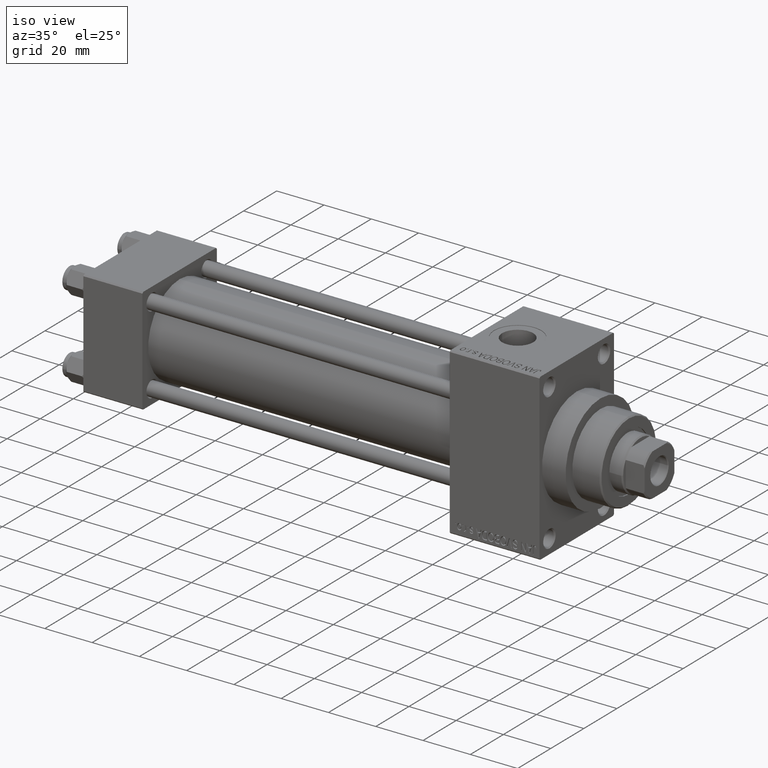
[diagram: clean part render]
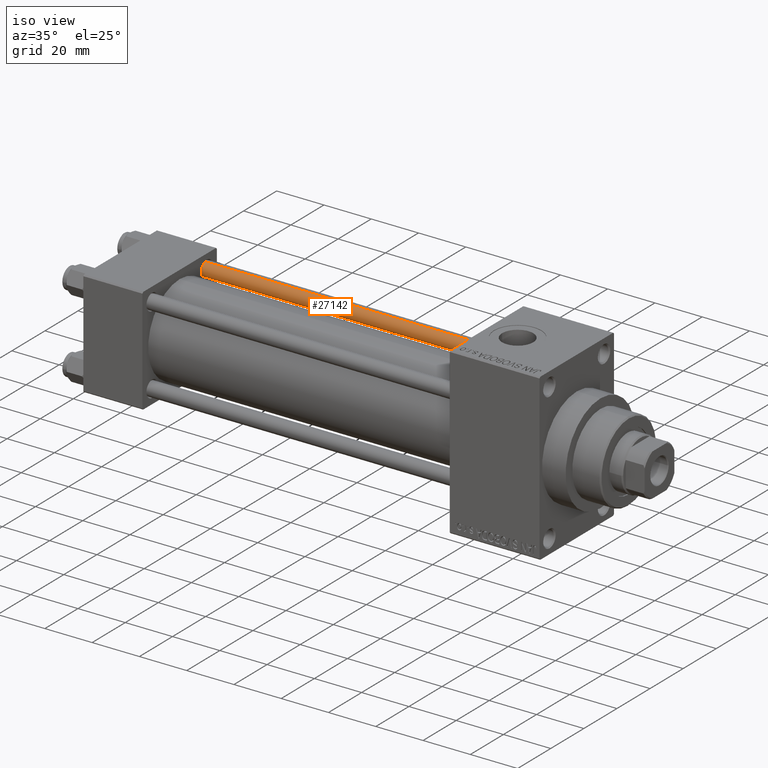
[diagram: same view with one face highlighted and labeled with its STEP entity id]
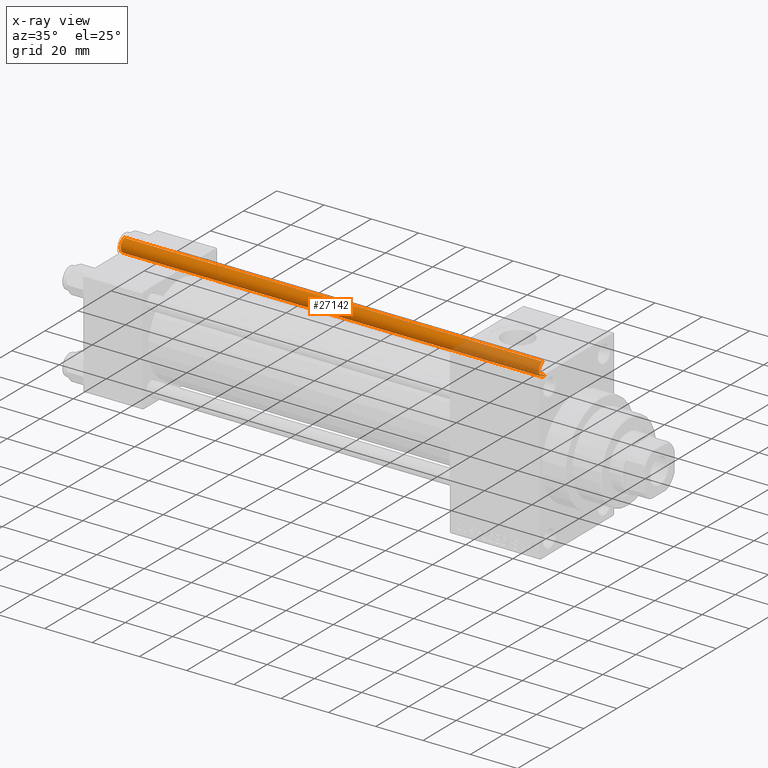
[diagram: x-ray of the same camera — body ghosted, the highlighted face saturated]
A machine part, iso view. The second image highlights one B-rep face of the part: STEP entity #27142.
The next image is the same camera in x-ray: the body ghosted, the highlighted face saturated — about 19% of this face is hidden behind the body in this view.
In plain terms, the highlighted cylindrical surface (edge-blend (fillet) strip) has radius 3 mm, axis along (-1, -0, 0).
Its self-contained STEP definition (entity closure, byte-faithful):
#674 = CIRCLE ( 'NONE', #13205, 3.000000000000000444 ) ;
#2046 = DIRECTION ( 'NONE',  ( -0.000000000000000000, -0.000000000000000000, -1.000000000000000000 ) ) ;
#3153 = VERTEX_POINT ( 'NONE', #22980 ) ;
#5464 = EDGE_CURVE ( 'NONE', #3153, #17183, #674, .T. ) ;
#6324 = CARTESIAN_POINT ( 'NONE',  ( -3.000000000000000444, 0.000000000000000000, 177.5000000000000000 ) ) ;
#9415 = CARTESIAN_POINT ( 'NONE',  ( 0.000000000000000000, 0.000000000000000000, 178.0000000000000000 ) ) ;
#10183 = CARTESIAN_POINT ( 'NONE',  ( 3.000000000000000444, 3.673940397442060361E-16, 178.0000000000000000 ) ) ;
#13094 = FACE_OUTER_BOUND ( 'NONE', #32336, .T. ) ;
#13205 = AXIS2_PLACEMENT_3D ( 'NONE', #34790, #16162, #15923 ) ;
#14128 = DIRECTION ( 'NONE',  ( -0.000000000000000000, -0.000000000000000000, -1.000000000000000000 ) ) ;
#15923 = DIRECTION ( 'NONE',  ( 1.000000000000000000, 0.000000000000000000, 0.000000000000000000 ) ) ;
#16162 = DIRECTION ( 'NONE',  ( 0.000000000000000000, 0.000000000000000000, -1.000000000000000000 ) ) ;
#16717 = ORIENTED_EDGE ( 'NONE', *, *, #36534, .T. ) ;
#17183 = VERTEX_POINT ( 'NONE', #6324 ) ;
#19326 = AXIS2_PLACEMENT_3D ( 'NONE', #29196, #28702, #36069 ) ;
#20967 = ORIENTED_EDGE ( 'NONE', *, *, #5464, .T. ) ;
#21034 = EDGE_CURVE ( 'NONE', #17183, #38651, #21490, .T. ) ;
#21490 = LINE ( 'NONE', #33230, #33818 ) ;
#21719 = CIRCLE ( 'NONE', #19326, 3.000000000000000444 ) ;
#22980 = CARTESIAN_POINT ( 'NONE',  ( 3.000000000000000444, 3.673940397442060361E-16, 177.5000000000000000 ) ) ;
#23291 = ORIENTED_EDGE ( 'NONE', *, *, #31721, .F. ) ;
#23669 = DIRECTION ( 'NONE',  ( -1.000000000000000000, 0.000000000000000000, 0.000000000000000000 ) ) ;
#23918 = VECTOR ( 'NONE', #48228, 1000.000000000000000 ) ;
#24065 = ORIENTED_EDGE ( 'NONE', *, *, #21034, .T. ) ;
#26219 = VERTEX_POINT ( 'NONE', #41266 ) ;
#27142 = ADVANCED_FACE ( 'NONE', ( #13094 ), #31267, .T. ) ;
#28702 = DIRECTION ( 'NONE',  ( -0.000000000000000000, -0.000000000000000000, 1.000000000000000000 ) ) ;
#29196 = CARTESIAN_POINT ( 'NONE',  ( 0.000000000000000000, 0.000000000000000000, 0.5000000000000281997 ) ) ;
#29302 = LINE ( 'NONE', #10183, #23918 ) ;
#31267 = CYLINDRICAL_SURFACE ( 'NONE', #37135, 3.000000000000000444 ) ;
#31721 = EDGE_CURVE ( 'NONE', #3153, #26219, #29302, .T. ) ;
#32336 = EDGE_LOOP ( 'NONE', ( #23291, #20967, #24065, #16717 ) ) ;
#33230 = CARTESIAN_POINT ( 'NONE',  ( -3.000000000000000444, 0.000000000000000000, 178.0000000000000000 ) ) ;
#33798 = CARTESIAN_POINT ( 'NONE',  ( -3.000000000000000444, 0.000000000000000000, 0.5000000000000281997 ) ) ;
#33818 = VECTOR ( 'NONE', #14128, 1000.000000000000000 ) ;
#34790 = CARTESIAN_POINT ( 'NONE',  ( 0.000000000000000000, 0.000000000000000000, 177.5000000000000000 ) ) ;
#36069 = DIRECTION ( 'NONE',  ( 1.000000000000000000, 0.000000000000000000, 0.000000000000000000 ) ) ;
#36534 = EDGE_CURVE ( 'NONE', #38651, #26219, #21719, .T. ) ;
#37135 = AXIS2_PLACEMENT_3D ( 'NONE', #9415, #2046, #23669 ) ;
#38651 = VERTEX_POINT ( 'NONE', #33798 ) ;
#41266 = CARTESIAN_POINT ( 'NONE',  ( 3.000000000000000444, 3.673940397442060361E-16, 0.5000000000000281997 ) ) ;
#48228 = DIRECTION ( 'NONE',  ( -0.000000000000000000, -0.000000000000000000, -1.000000000000000000 ) ) ;